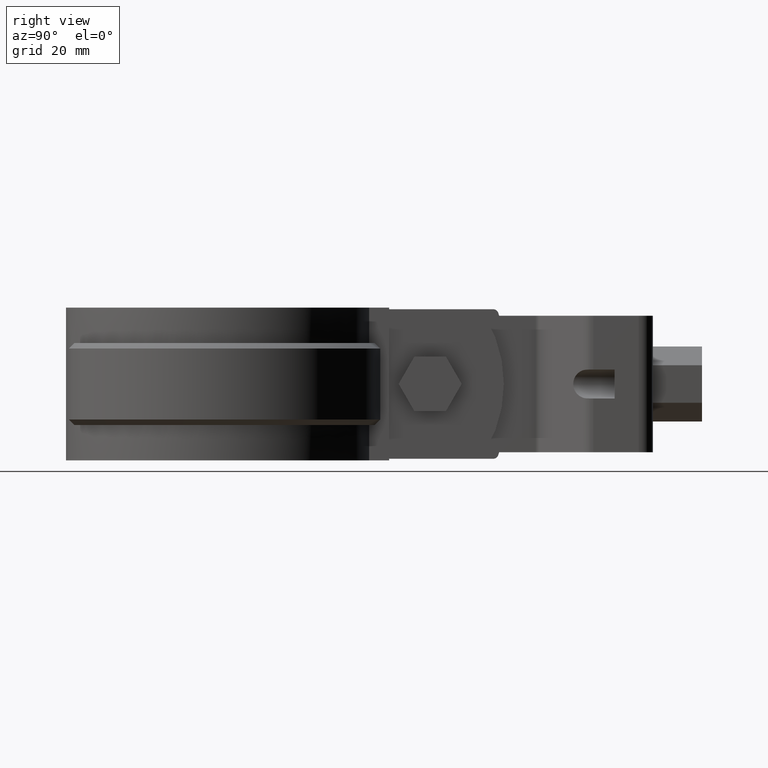
[diagram: clean part render]
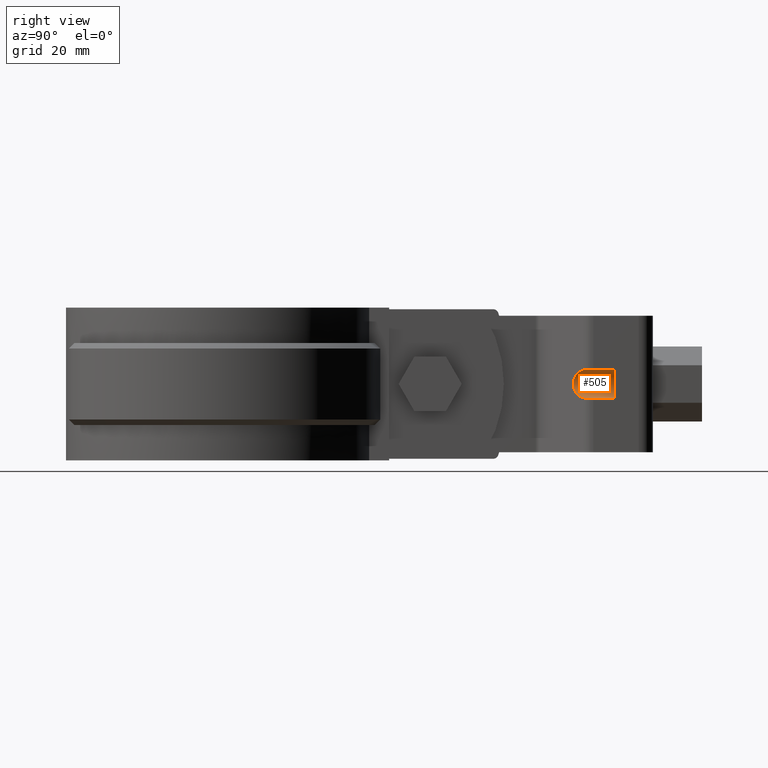
[diagram: same view with one face highlighted and labeled with its STEP entity id]
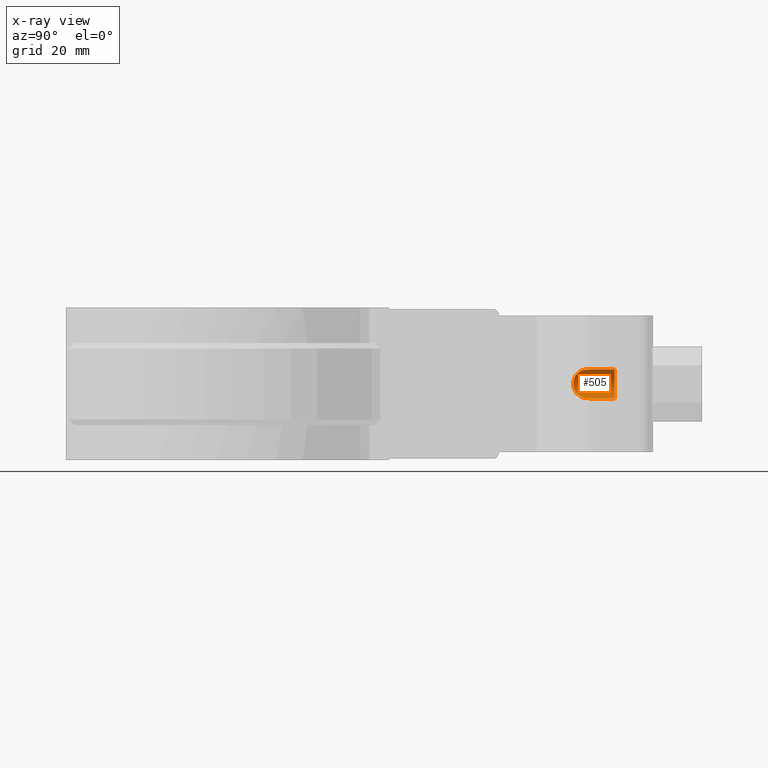
[diagram: x-ray of the same camera — body ghosted, the highlighted face saturated]
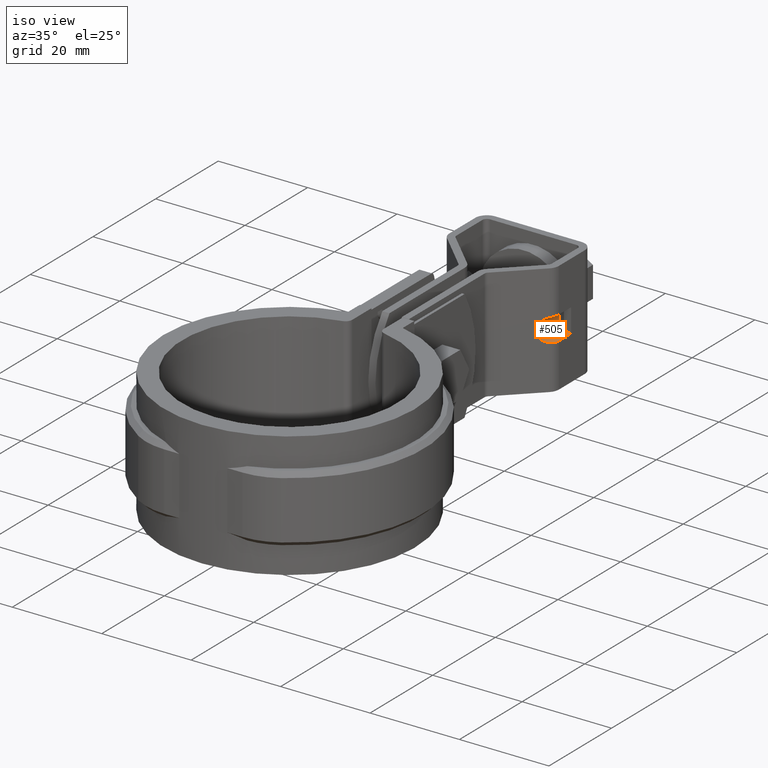
[diagram: same view with one face highlighted and labeled with its STEP entity id]
A machine part, right view. The second image highlights one B-rep face of the part: STEP entity #505.
The next image is the same camera in x-ray: the body ghosted, the highlighted face saturated — about 0% of this face is hidden behind the body in this view.
A second angle (iso view) of the same face is appended — the face is thin or edge-on in the first view.
In plain terms, the highlighted cylindrical surface (edge-blend (fillet) strip) has radius 2.65 mm, axis along (0, -1, 0).
Its self-contained STEP definition (entity closure, byte-faithful):
#505 = ADVANCED_FACE( '', ( #1005 ), #1006, .F. );
#1005 = FACE_OUTER_BOUND( '', #2349, .T. );
#1006 = CYLINDRICAL_SURFACE( '', #2350, 2.64999999999997 );
#2349 = EDGE_LOOP( '', ( #5219, #5220, #5221, #5222, #5223, #5224, #5225, #5226 ) );
#2350 = AXIS2_PLACEMENT_3D( '', #5227, #5228, #5229 );
#5219 = ORIENTED_EDGE( '', *, *, #7355, .F. );
#5220 = ORIENTED_EDGE( '', *, *, #7356, .F. );
#5221 = ORIENTED_EDGE( '', *, *, #7357, .T. );
#5222 = ORIENTED_EDGE( '', *, *, #7358, .T. );
#5223 = ORIENTED_EDGE( '', *, *, #7359, .T. );
#5224 = ORIENTED_EDGE( '', *, *, #7360, .T. );
#5225 = ORIENTED_EDGE( '', *, *, #7361, .F. );
#5226 = ORIENTED_EDGE( '', *, *, #7362, .F. );
#5227 = CARTESIAN_POINT( '', ( 12.2499999993808, 62.3998007485650, -12.5000000628741 ) );
#5228 = DIRECTION( '', ( 3.46775217277812E-012, -1.00000000000000, 5.08856068393042E-010 ) );
#5229 = DIRECTION( '', ( 2.01660317179863E-012, 5.08856068393049E-010, 1.00000000000000 ) );
#7355 = EDGE_CURVE( '', #8629, #8630, #8631, .T. );
#7356 = EDGE_CURVE( '', #8632, #8629, #8633, .T. );
#7357 = EDGE_CURVE( '', #8632, #8634, #8635, .T. );
#7358 = EDGE_CURVE( '', #8634, #8636, #8637, .T. );
#7359 = EDGE_CURVE( '', #8636, #8638, #8639, .T. );
#7360 = EDGE_CURVE( '', #8638, #8640, #8641, .T. );
#7361 = EDGE_CURVE( '', #8642, #8640, #8643, .T. );
#7362 = EDGE_CURVE( '', #8630, #8642, #8644, .T. );
#8629 = VERTEX_POINT( '', #12168 );
#8630 = VERTEX_POINT( '', #12169 );
#8631 = ELLIPSE( '', #12170, 3.70224472166266, 2.64999999999997 );
#8632 = VERTEX_POINT( '', #12171 );
#8633 = B_SPLINE_CURVE_WITH_KNOTS( '', 3, ( #12172, #12173, #12174, #12175, #12176, #12177, #12178, #12179, #12180, #12181 ), .UNSPECIFIED., .F., .F., ( 4, 2, 2, 2, 4 ), ( 0.000000000000000, 0.000517346174284565, 0.00103469234856913, 0.00155203852285369, 0.00206938469713826 ), .UNSPECIFIED. );
#8634 = VERTEX_POINT( '', #12182 );
#8635 = LINE( '', #12183, #12184 );
#8636 = VERTEX_POINT( '', #12185 );
#8637 = CIRCLE( '', #12186, 2.64999999999997 );
#8638 = VERTEX_POINT( '', #12187 );
#8639 = CIRCLE( '', #12188, 2.64999999999997 );
#8640 = VERTEX_POINT( '', #12189 );
#8641 = CIRCLE( '', #12190, 2.64999999999997 );
#8642 = VERTEX_POINT( '', #12191 );
#8643 = LINE( '', #12192, #12193 );
#8644 = B_SPLINE_CURVE_WITH_KNOTS( '', 3, ( #12194, #12195, #12196, #12197, #12198, #12199, #12200, #12201 ), .UNSPECIFIED., .F., .F., ( 4, 2, 2, 4 ), ( 1.73472347597681E-018, 0.000516787748161299, 0.00103357549632260, 0.00206715099264519 ), .UNSPECIFIED. );
#12168 = CARTESIAN_POINT( '', ( 11.4656419717403, 66.6345734386405, -15.0312611113256 ) );
#12169 = CARTESIAN_POINT( '', ( 11.4656419717506, 66.6345734412165, -9.96873901872918 ) );
#12170 = AXIS2_PLACEMENT_3D( '', #14082, #14083, #14084 );
#12171 = CARTESIAN_POINT( '', ( 12.2499999993543, 68.4956065463309, -15.1500000659760 ) );
#12172 = CARTESIAN_POINT( '', ( 12.2499999993543, 68.4956065463309, -15.1500000659760 ) );
#12173 = CARTESIAN_POINT( '', ( 12.2499999993549, 68.3207164820826, -15.1500000658870 ) );
#12174 = CARTESIAN_POINT( '', ( 12.2325330347638, 68.1487740741769, -15.1501637618042 ) );
#12175 = CARTESIAN_POINT( '', ( 12.1640563518042, 67.8105588841692, -15.1488274288049 ) );
#12176 = CARTESIAN_POINT( '', ( 12.1121297110603, 67.6424280358878, -15.1472760184063 ) );
#12177 = CARTESIAN_POINT( '', ( 11.9772119354433, 67.3233945806588, -15.1367907015873 ) );
#12178 = CARTESIAN_POINT( '', ( 11.8947254698200, 67.1723833613117, -15.1279278487846 ) );
#12179 = CARTESIAN_POINT( '', ( 11.7003962030091, 66.8876303515098, -15.0942552749570 ) );
#12180 = CARTESIAN_POINT( '', ( 11.5880224292186, 66.7539690013724, -15.0691829584390 ) );
#12181 = CARTESIAN_POINT( '', ( 11.4656419717403, 66.6345734386405, -15.0312611113256 ) );
#12182 = CARTESIAN_POINT( '', ( 12.2499999993408, 72.3998007472165, -15.1500000679626 ) );
#12183 = CARTESIAN_POINT( '', ( 12.2499999993755, 62.3998007472165, -15.1500000628741 ) );
#12184 = VECTOR( '', #14085, 1000.00000000000 );
#12185 = CARTESIAN_POINT( '', ( 10.6499999993419, 72.3998007474845, -14.6124630853872 ) );
#12186 = AXIS2_PLACEMENT_3D( '', #14086, #14087, #14088 );
#12187 = CARTESIAN_POINT( '', ( 10.6499999993505, 72.3998007496344, -10.3875370505317 ) );
#12188 = AXIS2_PLACEMENT_3D( '', #14089, #14090, #14091 );
#12189 = CARTESIAN_POINT( '', ( 12.2499999993516, 72.3998007499135, -9.85000006796270 ) );
#12190 = AXIS2_PLACEMENT_3D( '', #14092, #14093, #14094 );
#12191 = CARTESIAN_POINT( '', ( 12.2499999993651, 68.4956065490278, -9.85000006597603 ) );
#12192 = CARTESIAN_POINT( '', ( 12.2499999993863, 62.3998007499134, -9.85000006287415 ) );
#12193 = VECTOR( '', #14095, 1000.00000000000 );
#12194 = CARTESIAN_POINT( '', ( 11.4656419717506, 66.6345734412165, -9.96873901872916 ) );
#12195 = CARTESIAN_POINT( '', ( 11.5880007588020, 66.7539478621080, -9.93082388672020 ) );
#12196 = CARTESIAN_POINT( '', ( 11.6979909719521, 66.8846468274902, -9.90626139534523 ) );
#12197 = CARTESIAN_POINT( '', ( 11.8919852994132, 67.1678414483733, -9.87244992719878 ) );
#12198 = CARTESIAN_POINT( '', ( 11.9765770451151, 67.3221666469113, -9.86327479749538 ) );
#12199 = CARTESIAN_POINT( '', ( 12.1789956018794, 67.7999995787601, -9.84749570627397 ) );
#12200 = CARTESIAN_POINT( '', ( 12.2499999993663, 68.1460647069806, -9.85000006579816 ) );
#12201 = CARTESIAN_POINT( '', ( 12.2499999993651, 68.4956065490278, -9.85000006597603 ) );
#14082 = CARTESIAN_POINT( '', ( 12.2499999993635, 67.3998007485652, -12.5000000654184 ) );
#14083 = DIRECTION( '', ( -0.698323835532980, 0.715781964516087, -3.62807085505531E-010 ) );
#14084 = DIRECTION( '', ( 0.715781964516087, 0.698323835532979, -3.56804805036297E-010 ) );
#14085 = DIRECTION( '', ( -3.46775217277812E-012, 1.00000000000000, -5.08856068393042E-010 ) );
#14086 = CARTESIAN_POINT( '', ( 12.2499999993461, 72.3998007485650, -12.5000000679627 ) );
#14087 = DIRECTION( '', ( -3.46775217277812E-012, 1.00000000000000, -5.08856068393042E-010 ) );
#14088 = DIRECTION( '', ( 2.03820538866928E-012, 5.08856068393049E-010, 1.00000000000000 ) );
#14089 = CARTESIAN_POINT( '', ( 12.2499999993461, 72.3998007485650, -12.5000000679627 ) );
#14090 = DIRECTION( '', ( -3.46775217277812E-012, 1.00000000000000, -5.08856068393042E-010 ) );
#14091 = DIRECTION( '', ( 2.03820538866928E-012, 5.08856068393049E-010, 1.00000000000000 ) );
#14092 = CARTESIAN_POINT( '', ( 12.2499999993461, 72.3998007485650, -12.5000000679627 ) );
#14093 = DIRECTION( '', ( -3.46775217277812E-012, 1.00000000000000, -5.08856068393042E-010 ) );
#14094 = DIRECTION( '', ( 2.03820538866928E-012, 5.08856068393049E-010, 1.00000000000000 ) );
#14095 = DIRECTION( '', ( -3.46775217277812E-012, 1.00000000000000, -5.08856068393042E-010 ) );